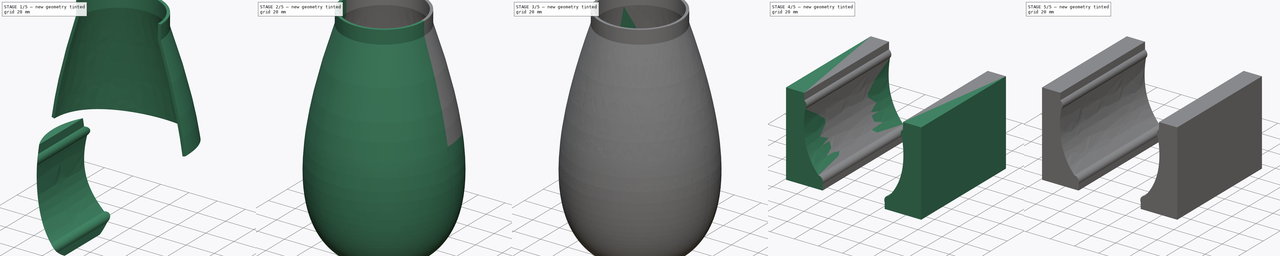
[diagram: build sequence overview — one tinted view per stage of 5, left to right]
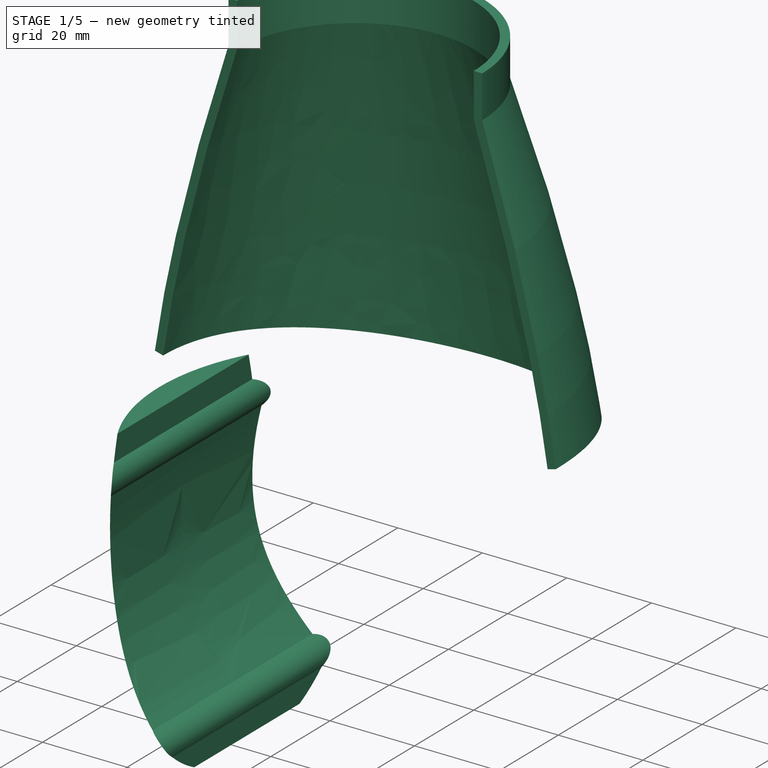
[diagram: stage 1 of 5 — iso view after this stage's code; geometry added in this stage tinted green]
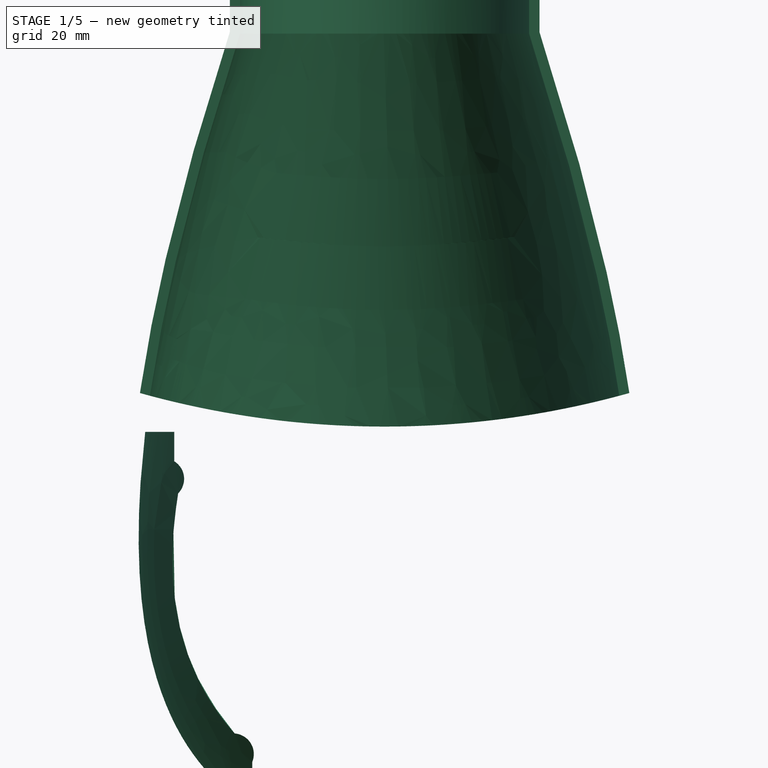
[diagram: stage 1 of 5 — front view after this stage's code; geometry added in this stage tinted green]
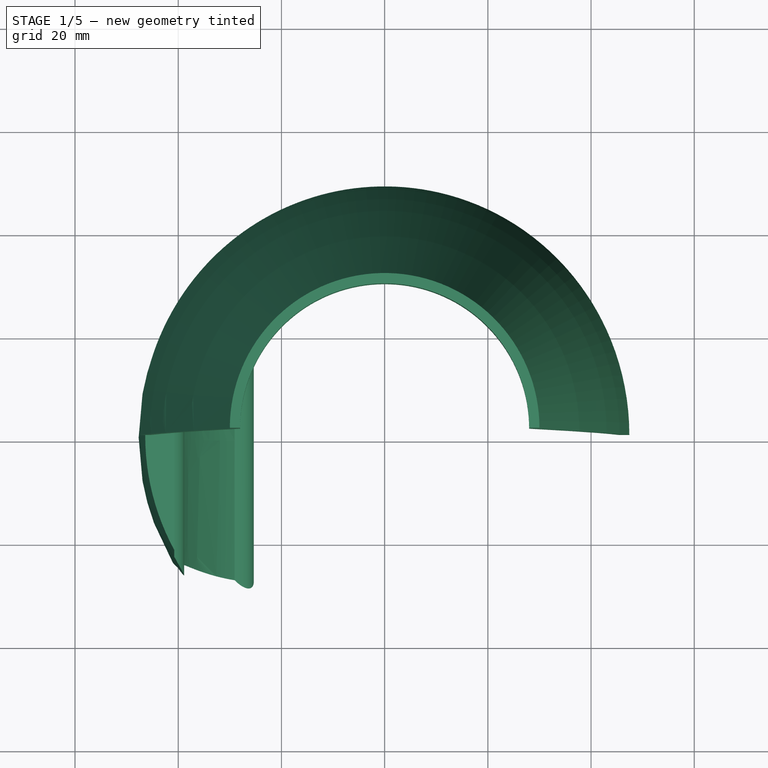
[diagram: stage 1 of 5 — top view after this stage's code; geometry added in this stage tinted green]
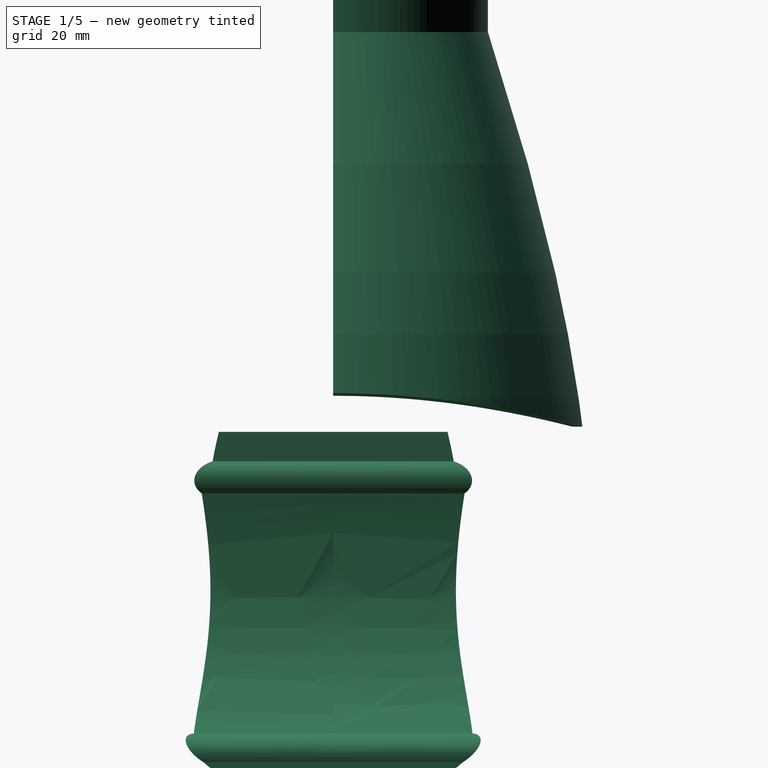
[diagram: stage 1 of 5 — right view after this stage's code; geometry added in this stage tinted green]
FCSTD DOCUMENT  (FreeCAD 2021.0308R24301 +3361 (Git))
Label: splitTools
License: All rights reserved
LicenseURL: http://en.wikipedia.org/wiki/All_rights_reserved
objects: PartDesign::Solid×12, PartDesign::SubShapeBinder×8, PartDesign::Body×7, Sketcher::SketchObject×4, PartDesign::Split×4, App::DocumentObjectGroup×3, PartDesign::Pad×2, Part::Extrusion×2, PartDesign::Revolution×1, PartDesign::Thickness×1, App::Part×1, PartDesign::Plane×1
note: 54 computed .brp shape members not serialized (recipe doc carries the construction recipe); baked Part::Feature solids carry a one-line shape summary decoded from their .brp

FEATURE [PartDesign::Solid] Split001_i3
  Active = false
  Parent = -> Split001
FEATURE [PartDesign::Split] Split003
  BaseFeature = -> Split002
  Fragment = false
  Mode = 0
  NewSolid = false
  Solids = -> [Split003_i0,Split003_i1]
  Suppress = false
  Tolerance = 0
  Tools = -> [DatumPlane]
FEATURE [PartDesign::Solid] Split003_i0
  Active = true
  Parent = -> Split003
FEATURE [PartDesign::Solid] Split003_i1
  Active = false
  Parent = -> Split003
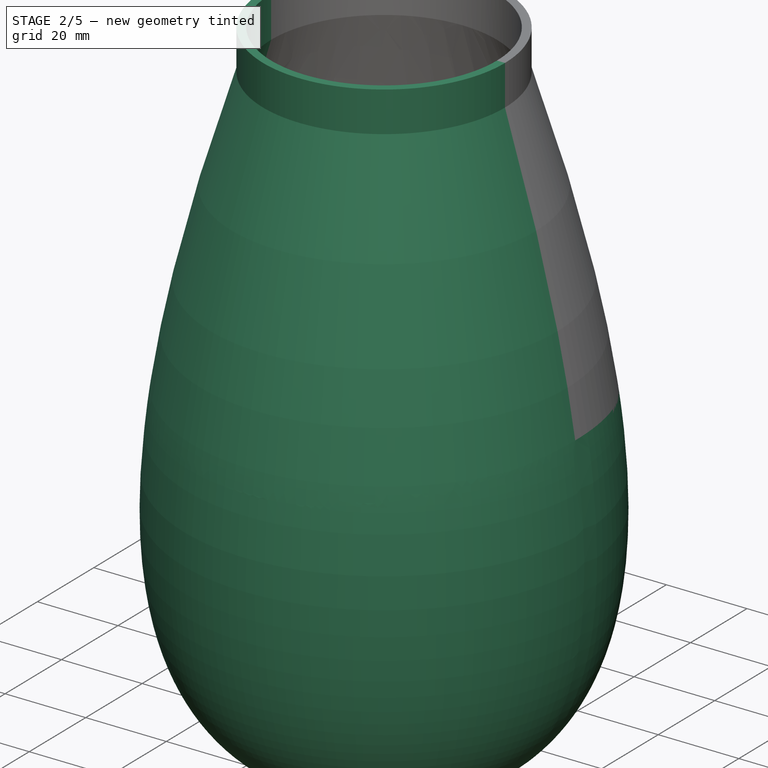
[diagram: stage 2 of 5 — iso view after this stage's code; geometry added in this stage tinted green]
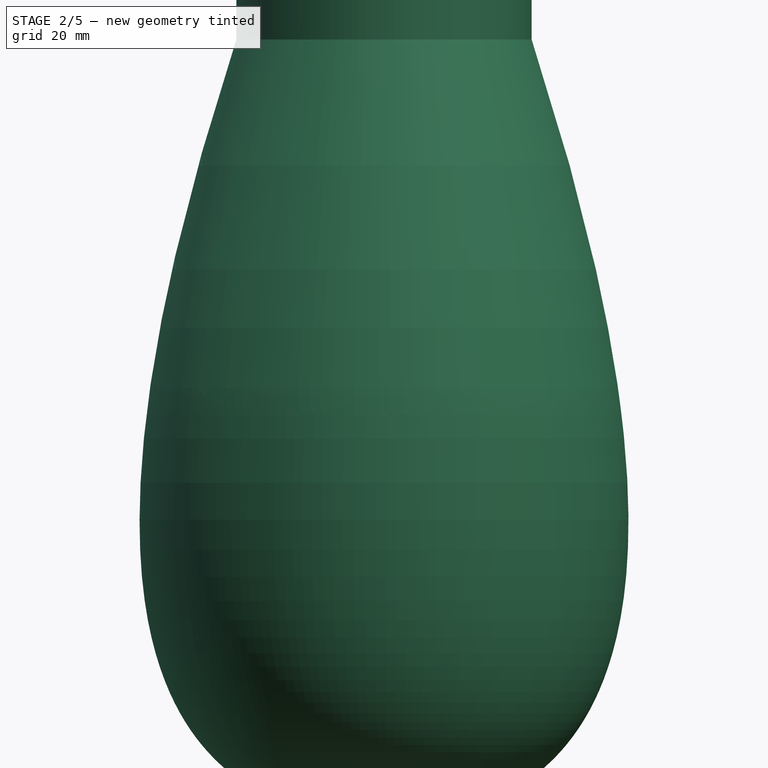
[diagram: stage 2 of 5 — front view after this stage's code; geometry added in this stage tinted green]
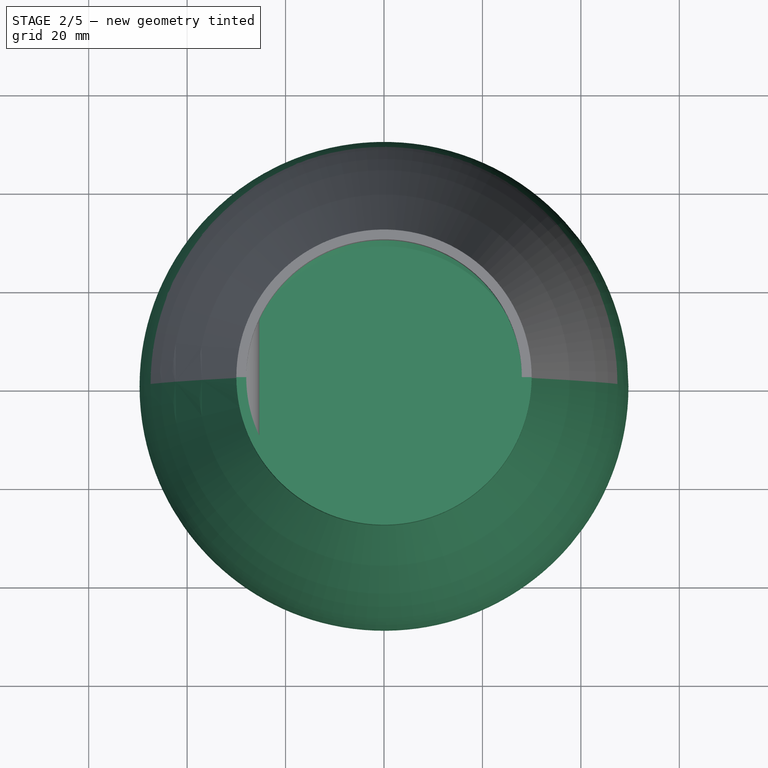
[diagram: stage 2 of 5 — top view after this stage's code; geometry added in this stage tinted green]
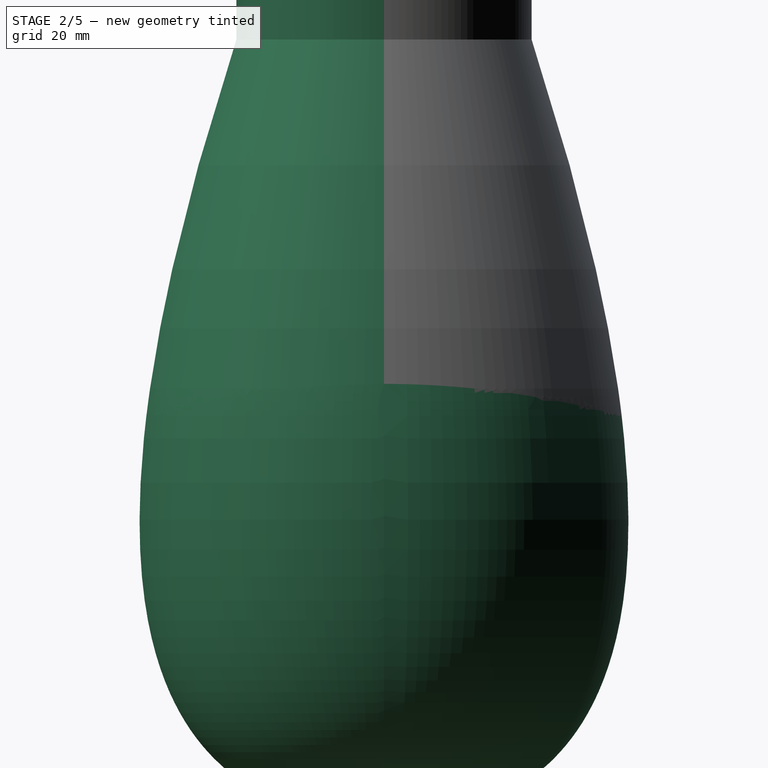
[diagram: stage 2 of 5 — right view after this stage's code; geometry added in this stage tinted green]
FEATURE [PartDesign::Split] Split001
  BaseFeature = -> Split
  Fragment = false
  Mode = 0
  NewSolid = false
  Solids = -> [Split001_i0,Split001_i1,Split001_i2,Split001_i3]
  Suppress = false
  Tolerance = 0
  Tools = -> [Binder002]
FEATURE [PartDesign::Solid] Split001_i0
  Active = true
  Parent = -> Split001
FEATURE [PartDesign::Solid] Split001_i1
  Active = true
  Parent = -> Split001
FEATURE [App::DocumentObjectGroup] Group002  label="Components"
  ExportMode = 1
  Group = -> [Body,Body006]
  _GroupVersion = 1
FEATURE [PartDesign::Solid] Split001_i2
  Active = false
  Parent = -> Split001
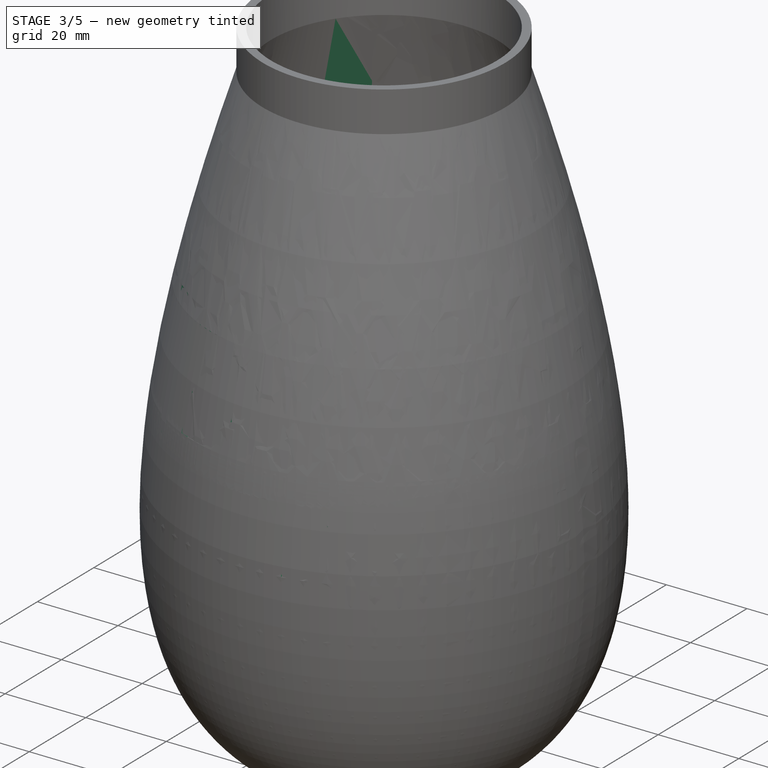
[diagram: stage 3 of 5 — iso view after this stage's code; geometry added in this stage tinted green]
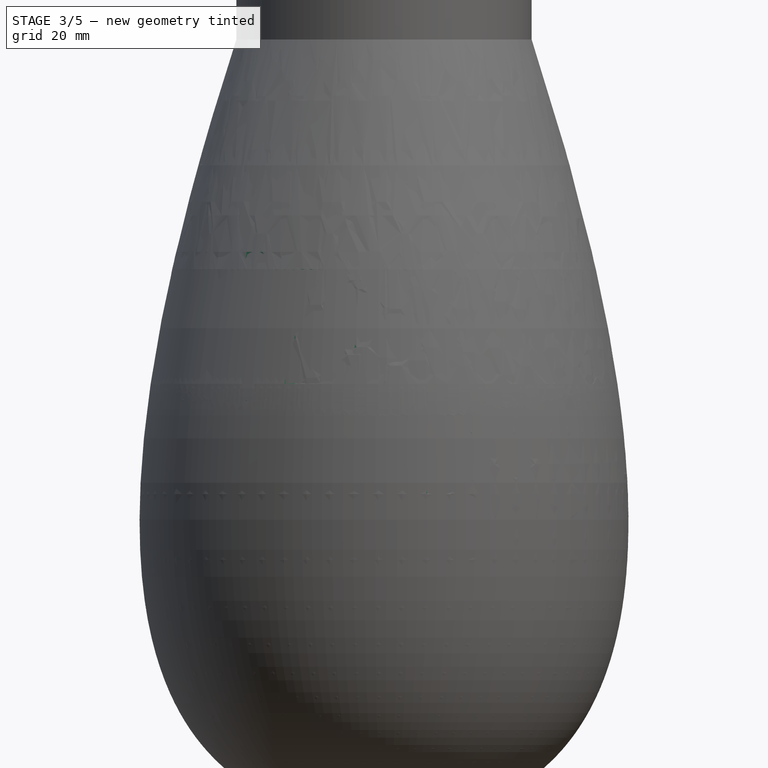
[diagram: stage 3 of 5 — front view after this stage's code; geometry added in this stage tinted green]
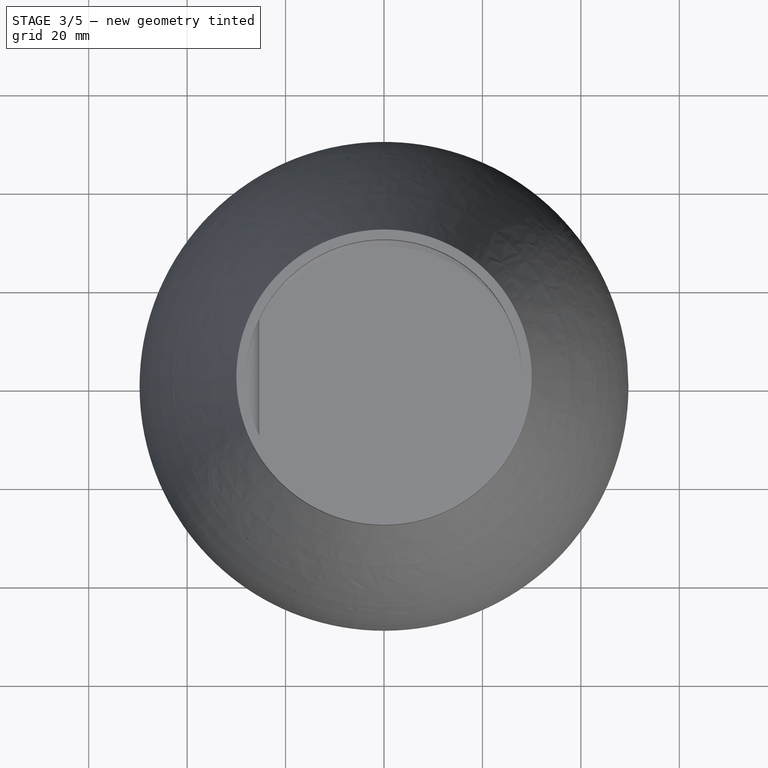
[diagram: stage 3 of 5 — top view after this stage's code; geometry added in this stage tinted green]
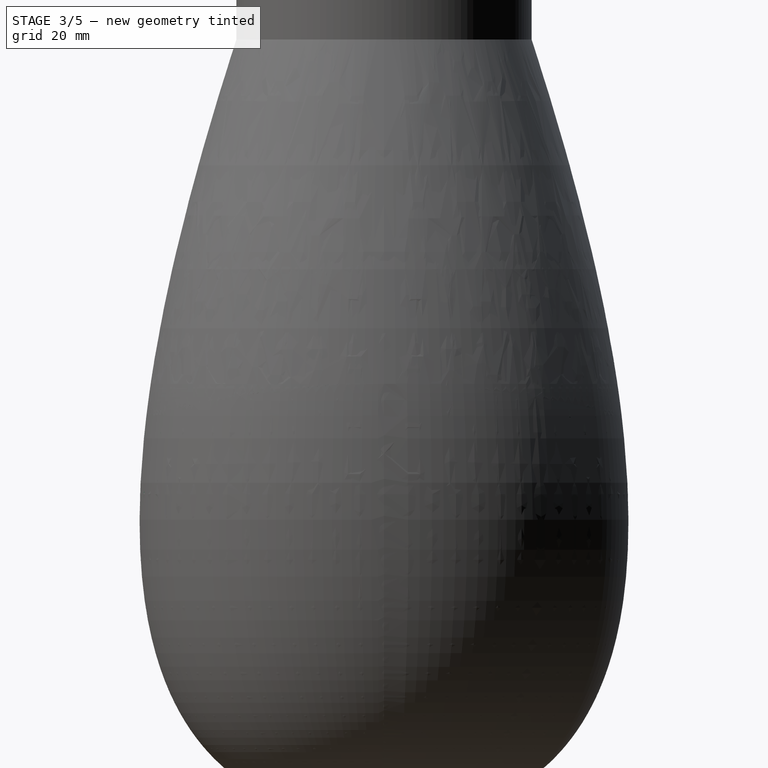
[diagram: stage 3 of 5 — right view after this stage's code; geometry added in this stage tinted green]
FEATURE [Sketcher::SketchObject] Sketch
  FullyConstrained = false
  MapMode = 5
  Placement = pos=(0,0,0) rot=(1,0,0;1.5708rad)
  Support = -> [XZ_Plane]
  sketch-geometry (9):
    g0: LineSegment StartX=30 StartY=150 StartZ=0 EndX=0 EndY=150 EndZ=0
    g1: LineSegment StartX=0 StartY=150 StartZ=0 EndX=0 EndY=0 EndZ=0
    g2: LineSegment StartX=0 StartY=0 StartZ=0 EndX=30 EndY=0 EndZ=0
    g3: Circle [constr] CenterX=30 CenterY=150 CenterZ=0 NormalX=0 NormalY=0 NormalZ=1 AngleXU=0 Radius=1
    g4: Circle [constr] CenterX=69.3439 CenterY=29.0557 CenterZ=0 NormalX=0 NormalY=0 NormalZ=1 AngleXU=0 Radius=1
    g5: Circle [constr] CenterX=30 CenterY=0 CenterZ=0 NormalX=0 NormalY=0 NormalZ=1 AngleXU=0 Radius=1
    g6: BSplineCurve PolesCount=3 KnotsCount=2 Degree=2 IsPeriodic=0
    g7: GeomPoint [constr] X=30 Y=150 Z=0
    g8: GeomPoint [constr] X=30 Y=0 Z=0
  constraints (19):
    c: PointOnObject(g0,g-2)
    c: Horizontal(g0)
    c: Coincident(g0,g1)
    c: Coincident(g1,g-1)
    c: Coincident(g1,g2)
    c: PointOnObject(g2,g-1)
    c: DistanceY(g1,g1) = 150
    c: Equal(g2,g0)
    c: DistanceX(g0,g0) = 30
    c: Coincident(g6,g0)
    c: Weight(g3) = 1
    c: Equal(g3,g4)
    c: Equal(g3,g5)
    c: Coincident(g6,g2)
    c: InternalAlignment(g3,g6)
    c: InternalAlignment(g4,g6)
    c: InternalAlignment(g5,g6)
    c: InternalAlignment(g7,g6)
    c: InternalAlignment(g8,g6)
FEATURE [PartDesign::Revolution] Revolution
  Angle = 360
  Axis = (0,2e-16,1)
  Base = (0,0,0)
  ClaimChildren = false
  Fit = 0
  FitJoin = 0
  InnerFit = 0
  InnerFitJoin = 0
  NewSolid = false
  Placement = pos=(0,0,0) rot=(1,0,0;1.5708rad)
  Profile = -> Sketch
  ReferenceAxis = -> Sketch [V_Axis]
  Reversed = true
  Suppress = false
FEATURE [PartDesign::Pad] Pad
  BaseFeature = -> Revolution
  ClaimChildren = false
  Direction = (1,1,1)
  Fit = 0
  FitJoin = 0
  InnerFit = 0
  InnerFitJoin = 0
  InnerTaperAngle = 0
  InnerTaperAngleRev = 0
  Length = 10
  Length2 = 100
  NewSolid = false
  Placement = pos=(0,0,0) rot=(1,0,0;1.5708rad)
  Profile = -> Revolution [Face1]
  Suppress = false
  Type = 0
  UsePipeForDraft = true
FEATURE [PartDesign::Thickness] Thickness
  Base = -> Pad [Face4]
  BaseFeature = -> Pad
  Intersection = false
  Join = 1
  Mode = 0
  NewSolid = false
  Reversed = true
  SupportTransform = false
  Suppress = false
  Value = 2
FEATURE [PartDesign::Solid] Split_i1
  Active = true
  Parent = -> Split
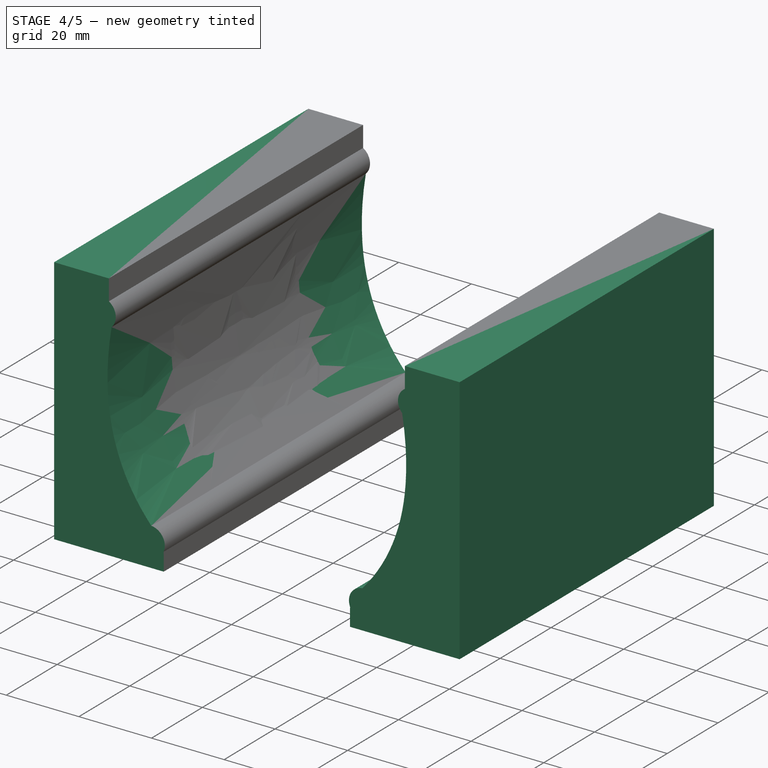
[diagram: stage 4 of 5 — iso view after this stage's code; geometry added in this stage tinted green]
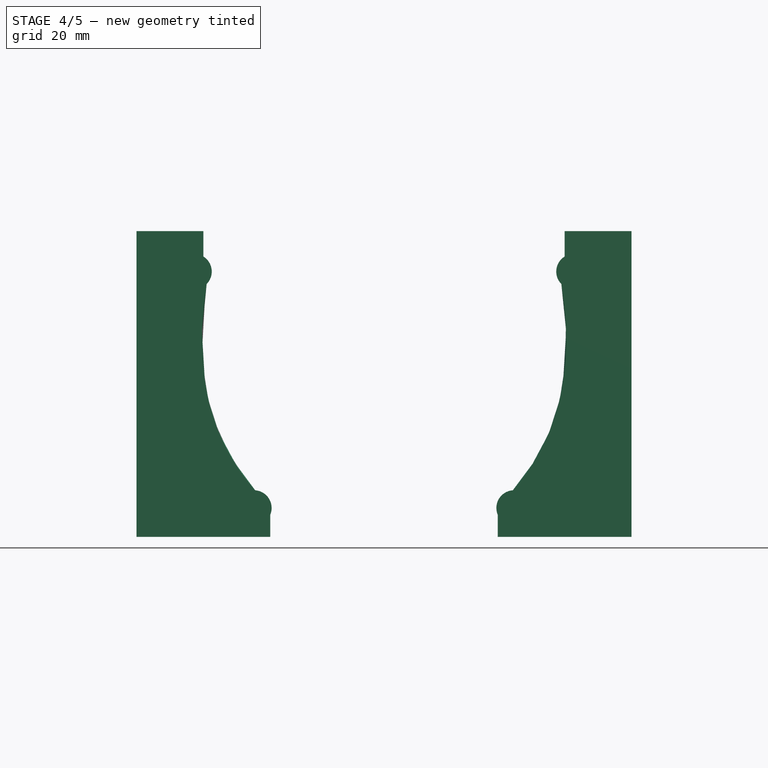
[diagram: stage 4 of 5 — front view after this stage's code; geometry added in this stage tinted green]
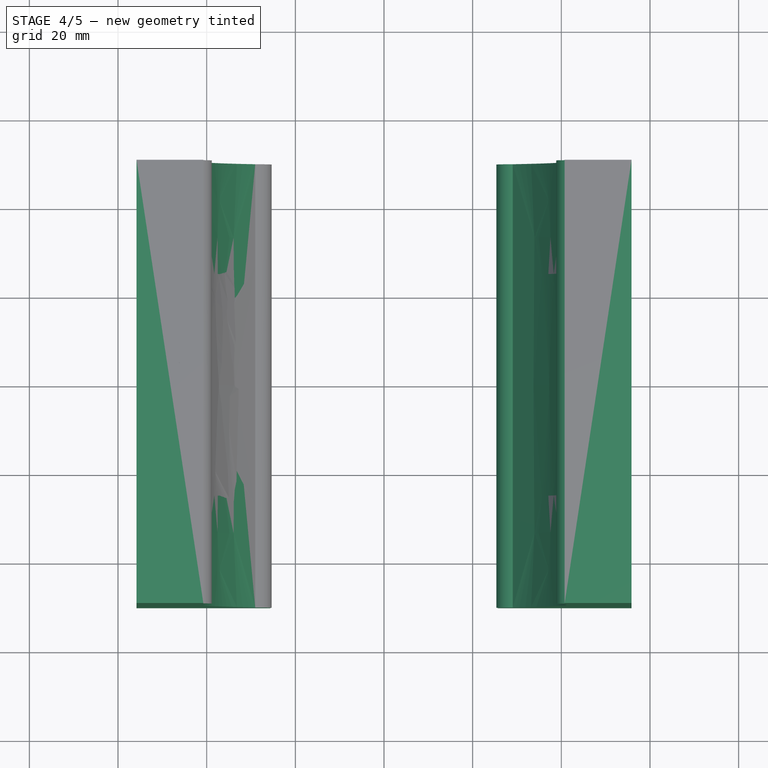
[diagram: stage 4 of 5 — top view after this stage's code; geometry added in this stage tinted green]
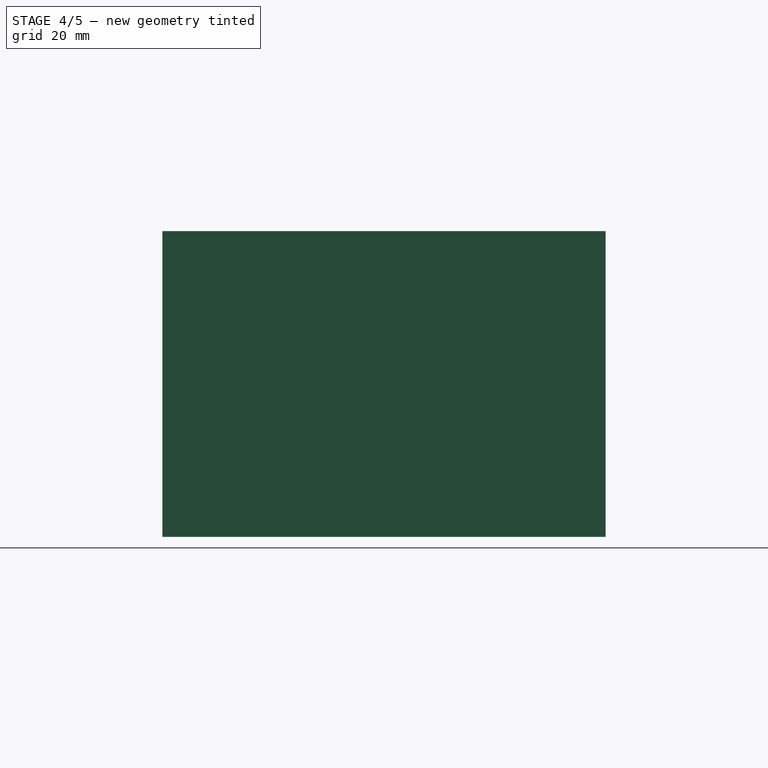
[diagram: stage 4 of 5 — right view after this stage's code; geometry added in this stage tinted green]
FEATURE [PartDesign::SubShapeBinder] Binder  label="Binder(Thickness)"
  BindCopyOnChange = 0
  BindMode = 0
  ClaimChildren = false
  Context = -> Body001 [Binder.]
  FillStyle = 0
  Fuse = false
  MakeFace = true
  PartialLoad = false
  Relative = true
  Support = -> [Thickness[Face7]]
  _Version = 7
FEATURE [Sketcher::SketchObject] Sketch001
  ExternalGeometry = -> [Binder]
  FullyConstrained = false
  MapMode = 5
  Placement = pos=(0,0,0) rot=(0.57735,0.57735,0.57735;2.0944rad)
  Support = -> [YZ_Plane001]
  sketch-geometry (2):
    g0: LineSegment StartX=1.1e-15 StartY=2 StartZ=0 EndX=0 EndY=250.134 EndZ=0
    g1: LineSegment StartX=1.1e-15 StartY=2 StartZ=0 EndX=-98.7085 EndY=2 EndZ=0
  constraints (4):
    c: PointOnObject(g0,g-2)
    c: Coincident(g1,g0)
    c: PointOnObject(g1,g-3)
    c: PointOnObject(g0,g-3)
FEATURE [Sketcher::SketchObject] Sketch002
  FullyConstrained = false
  MapMode = 5
  Placement = pos=(0,0,0) rot=(1,0,0;1.5708rad)
  Support = -> [XZ_Plane001]
  sketch-geometry (1):
    g0: ArcOfCircle CenterX=1.8e-14 CenterY=249.704 CenterZ=0 NormalX=0 NormalY=0 NormalZ=1 AngleXU=0 Radius=176.178 StartAngle=4.12164 EndAngle=5.30314
  constraints (1):
    c: Symmetric(g0,g0,g-2)
FEATURE [PartDesign::Body] Body001  label="SplittingTools"
  AutoGroupSolids = false
  ExportMode = 0
  Group = -> [Sketch001,Binder,Sketch002]
  Origin = -> Origin001
  _ExportChildren = -> [Sketch001,Binder,Sketch002]
  _GroupVersion = 1
FEATURE [Part::Extrusion] Extrude
  Base = -> Sketch001
  Dir = (-1,0,0)
  DirMode = 0
  FaceMakerClass = Part::FaceMakerBullseye
  InnerTaperAngle = 0
  InnerTaperAngleRev = 0
  LengthFwd = 200
  LengthRev = 0
  Solid = false
  Symmetric = true
  UsePipeForDraft = true
FEATURE [Part::Extrusion] Extrude001
  Base = -> Sketch002
  Dir = (0,-1,0)
  DirMode = 0
  FaceMakerClass = Part::FaceMakerBullseye
  InnerTaperAngle = 0
  InnerTaperAngleRev = 0
  LengthFwd = 200
  LengthRev = 0
  Solid = false
  Symmetric = true
  UsePipeForDraft = true
FEATURE [App::DocumentObjectGroup] Group  label="SplittingTools001"
  ExportMode = 1
  Group = -> [Body001,Extrude,Extrude001]
  _GroupVersion = 1
FEATURE [App::DocumentObjectGroup] Group001  label="AssemblyTools"
  ExportMode = 1
  _GroupVersion = 1
FEATURE [PartDesign::SubShapeBinder] Binder001  label="Binder001(Extrude001)"
  BindCopyOnChange = 0
  BindMode = 0
  ClaimChildren = false
  Context = -> Body [Binder001.]
  FillStyle = 0
  Fuse = false
  MakeFace = true
  PartialLoad = false
  Relative = true
  Support = -> [Extrude001[Face1]]
  _Version = 7
FEATURE [PartDesign::SubShapeBinder] Binder002  label="Binder002(Extrude)..."
  BindCopyOnChange = 0
  BindMode = 0
  ClaimChildren = false
  Context = -> Body [Binder002.]
  FillStyle = 0
  Fuse = false
  MakeFace = true
  PartialLoad = false
  Relative = true
  Support = -> [Extrude[Face2,Face1]]
  _Version = 7
FEATURE [PartDesign::SubShapeBinder] BaseFeature  label="BaseFeature(Split001_i0)"
  BindCopyOnChange = 0
  BindMode = 0
  ClaimChildren = false
  Context = -> Part [Body002.BaseFeature.]
  FillStyle = 0
  Fuse = true
  MakeFace = true
  PartialLoad = false
  Relative = true
  Support = -> [Body[Split001_i0.]]
  _Version = 7
FEATURE [PartDesign::Body] Body002  label="Bottom"
  AutoGroupSolids = false
  BaseFeature = -> BaseFeature
  ExportMode = 0
  Group = -> [BaseFeature]
  Origin = -> Origin003
  _ExportChildren = -> [BaseFeature]
  _GroupVersion = 1
FEATURE [PartDesign::SubShapeBinder] BaseFeature001  label="BaseFeature001(Split001_i1)"
  BindCopyOnChange = 0
  BindMode = 0
  ClaimChildren = false
  Context = -> Part [Body003.BaseFeature001.]
  FillStyle = 0
  Fuse = true
  MakeFace = true
  PartialLoad = false
  Relative = true
  Support = -> [Body[Split001_i1.]]
  _Version = 7
FEATURE [PartDesign::Body] Body003  label="BottomSide"
  AutoGroupSolids = false
  BaseFeature = -> BaseFeature001
  ExportMode = 0
  Group = -> [BaseFeature001]
  Origin = -> Origin004
  _ExportChildren = -> [BaseFeature001]
  _GroupVersion = 1
FEATURE [PartDesign::SubShapeBinder] BaseFeature002  label="BaseFeature002(Split001_i2)"
  BindCopyOnChange = 0
  BindMode = 0
  ClaimChildren = false
  Context = -> Part [Body004.BaseFeature002.]
  FillStyle = 0
  Fuse = true
  MakeFace = true
  PartialLoad = false
  Relative = true
  Support = -> [Body[Split001_i2.]]
  _Version = 7
FEATURE [PartDesign::Body] Body004
  AutoGroupSolids = false
  BaseFeature = -> BaseFeature002
  ExportMode = 0
  Group = -> [BaseFeature002]
  Origin = -> Origin005
  _ExportChildren = -> [BaseFeature002]
  _GroupVersion = 1
FEATURE [PartDesign::SubShapeBinder] BaseFeature003  label="BaseFeature003(Split001_i3)"
  BindCopyOnChange = 0
  BindMode = 0
  ClaimChildren = false
  Context = -> Part [Body005.BaseFeature003.]
  FillStyle = 0
  Fuse = true
  MakeFace = true
  PartialLoad = false
  Relative = true
  Support = -> [Body[Split001_i3.]]
  _Version = 7
FEATURE [PartDesign::Body] Body005
  AutoGroupSolids = false
  BaseFeature = -> BaseFeature003
  ExportMode = 0
  Group = -> [BaseFeature003]
  Origin = -> Origin006
  _ExportChildren = -> [BaseFeature003]
  _GroupVersion = 1
FEATURE [App::Part] Part  label="FinalProduct"
  ExportMode = 1
  Group = -> [Body002,Body003,Body004,Body005]
  Origin = -> Origin002
  _ExportChildren = -> [Body002,Body003,Body004,Body005]
  _GroupVersion = 1
FEATURE [PartDesign::SubShapeBinder] Binder003  label="Binder003(*Split001_i1)..."
  BindCopyOnChange = 0
  BindMode = 0
  ClaimChildren = false
  Context = -> Part [Body006.Binder003.]
  FillStyle = 0
  Fuse = false
  MakeFace = true
  PartialLoad = false
  Relative = true
  Support = -> [Body003[BaseFeature001.Face6],Body002[BaseFeature.Face6,BaseFeature.Face7]]
  _Version = 7
FEATURE [Sketcher::SketchObject] Sketch003
  ExternalGeometry = -> [Binder003]
  FullyConstrained = false
  MapMode = 5
  Placement = pos=(0,0,0) rot=(1,0,0;1.5708rad)
  Support = -> [XZ_Plane006]
  sketch-geometry (26):
    g0: ArcOfCircle CenterX=-42.8603 CenterY=63.3901 CenterZ=0 NormalX=0 NormalY=0 NormalZ=1 AngleXU=0 Radius=4 StartAngle=5.50412 EndAngle=7.30155
    g1: ArcOfCircle CenterX=-29.3539 CenterY=10.0638 CenterZ=0 NormalX=0 NormalY=0 NormalZ=1 AngleXU=0 Radius=4 StartAngle=5.88637 EndAngle=7.77962
    g2: LineSegment StartX=-40.7612 StartY=66.7951 StartZ=0 EndX=-40.7612 EndY=72.5062 EndZ=0
    g3: LineSegment StartX=-40.7612 StartY=72.5062 StartZ=0 EndX=-55.839 EndY=72.5062 EndZ=0
    g4: LineSegment StartX=-55.839 StartY=72.5062 StartZ=0 EndX=-55.839 EndY=3.55179 EndZ=0
    g5: LineSegment StartX=-55.839 StartY=3.55179 StartZ=0 EndX=-25.6535 EndY=3.55179 EndZ=0
    g6: Circle [constr] CenterX=-40.014 CenterY=60.5797 CenterZ=0 NormalX=0 NormalY=0 NormalZ=1 AngleXU=0 Radius=1
    g7: Circle [constr] CenterX=-44.7852 CenterY=31.8128 CenterZ=0 NormalX=0 NormalY=0 NormalZ=1 AngleXU=0 Radius=1
    g8: Circle [constr] CenterX=-29.0567 CenterY=14.0527 CenterZ=0 NormalX=0 NormalY=0 NormalZ=1 AngleXU=0 Radius=1
    g9: BSplineCurve PolesCount=3 KnotsCount=2 Degree=2 IsPeriodic=0
    g10: GeomPoint [constr] X=-40.014 Y=60.5797 Z=0
    g11: GeomPoint [constr] X=-29.0567 Y=14.0527 Z=0
    g12: LineSegment StartX=-25.6535 StartY=3.55179 StartZ=0 EndX=-25.6647 EndY=8.51787 EndZ=0
    g13: ArcOfCircle CenterX=42.8603 CenterY=63.3901 CenterZ=0 NormalX=0 NormalY=0 NormalZ=1 AngleXU=0 Radius=4 StartAngle=2.12322 EndAngle=3.92065
    g14: ArcOfCircle CenterX=29.3539 CenterY=10.0638 CenterZ=0 NormalX=0 NormalY=0 NormalZ=1 AngleXU=0 Radius=4 StartAngle=1.64516 EndAngle=3.53841
    g15: LineSegment StartX=40.7612 StartY=66.7951 StartZ=0 EndX=40.7612 EndY=72.5062 EndZ=0
    g16: LineSegment StartX=40.7612 StartY=72.5062 StartZ=0 EndX=55.839 EndY=72.5062 EndZ=0
    g17: LineSegment StartX=55.839 StartY=72.5062 StartZ=0 EndX=55.839 EndY=3.55179 EndZ=0
    g18: LineSegment StartX=55.839 StartY=3.55179 StartZ=0 EndX=25.6535 EndY=3.55179 EndZ=0
    g19: Circle [constr] CenterX=40.014 CenterY=60.5797 CenterZ=0 NormalX=0 NormalY=0 NormalZ=1 AngleXU=0 Radius=1
    g20: Circle [constr] CenterX=44.7852 CenterY=31.8128 CenterZ=0 NormalX=0 NormalY=0 NormalZ=1 AngleXU=0 Radius=1
    g21: Circle [constr] CenterX=29.0567 CenterY=14.0527 CenterZ=0 NormalX=0 NormalY=0 NormalZ=1 AngleXU=0 Radius=1
    g22: BSplineCurve PolesCount=3 KnotsCount=2 Degree=2 IsPeriodic=0
    g23: GeomPoint [constr] X=40.014 Y=60.5797 Z=0
    g24: GeomPoint [constr] X=29.0567 Y=14.0527 Z=0
    g25: LineSegment StartX=25.6535 StartY=3.55179 StartZ=0 EndX=25.6647 EndY=8.51787 EndZ=0
  constraints (44):
    c: Equal(g0,g1)
    c: Radius(g0) = 4
    c: Coincident(g2,g0)
    c: Vertical(g2)
    c: Coincident(g3,g2)
    c: Horizontal(g3)
    c: Coincident(g4,g3)
    c: Vertical(g4)
    c: Coincident(g5,g4)
    c: Horizontal(g5)
    c: Coincident(g9,g0)
    c: Weight(g6) = 1
    c: Equal(g6,g7)
    c: Equal(g6,g8)
    c: Coincident(g9,g1)
    c: InternalAlignment(g6,g9)
    c: InternalAlignment(g7,g9)
    c: InternalAlignment(g8,g9)
    c: InternalAlignment(g10,g9)
    c: InternalAlignment(g11,g9)
    c: Coincident(g12,g5)
    c: Coincident(g12,g1)
    c: Equal(g13,g14)
    c: Radius(g13) = 4
    c: Coincident(g15,g13)
    c: Vertical(g15)
    c: Coincident(g16,g15)
    c: Horizontal(g16)
    c: Coincident(g17,g16)
    c: Vertical(g17)
    c: Coincident(g18,g17)
    c: Horizontal(g18)
    c: Coincident(g22,g13)
    c: Weight(g19) = 1
    c: Equal(g19,g20)
    c: Equal(g19,g21)
    c: Coincident(g22,g14)
    c: InternalAlignment(g19,g22)
    c: InternalAlignment(g20,g22)
    c: InternalAlignment(g21,g22)
    c: InternalAlignment(g23,g22)
    c: InternalAlignment(g24,g22)
    c: Coincident(g25,g18)
    c: Coincident(g25,g14)
FEATURE [PartDesign::Pad] Pad001
  ClaimChildren = false
  Direction = (1,1,1)
  Fit = 0
  FitJoin = 0
  InnerFit = 0
  InnerFitJoin = 0
  InnerTaperAngle = 0
  InnerTaperAngleRev = 0
  Length = 100
  Length2 = 100
  Midplane = true
  NewSolid = false
  Placement = pos=(0,0,0) rot=(1,0,0;1.5708rad)
  Profile = -> Sketch003
  Suppress = false
  Type = 0
  UsePipeForDraft = true
FEATURE [PartDesign::Plane] DatumPlane
  Length = 111.678
  MapMode = 2
  MinimumLength = 10
  MinimumWidth = 10
  Placement = pos=(0,0,0) rot=(1,0,0;1.5708rad)
  ResizeMode = 0
  Support = -> [Pad001]
  Width = 79.496
FEATURE [PartDesign::Body] Body  label="Vase"
  AutoGroupSolids = false
  ExportMode = 0
  Group = -> [Sketch,Revolution,Pad,Thickness,Binder001,Split,Split_i0,Split_i1,Binder002,Split001,Split001_i0,Split001_i1,Split001_i2,Split001_i3]
  Origin = -> Origin
  Tip = -> Split001
  _ExportChildren = -> [Revolution,Pad,Thickness,Split,Split001]
  _GroupVersion = 1
FEATURE [PartDesign::Split] Split
  BaseFeature = -> Thickness
  Fragment = false
  Mode = 0
  NewSolid = false
  Solids = -> [Split_i0,Split_i1]
  Suppress = false
  Tolerance = 0
  Tools = -> [Binder001]
FEATURE [PartDesign::Solid] Split_i0
  Active = true
  Parent = -> Split
FEATURE [PartDesign::Solid] Split002_i3
  Active = false
  Parent = -> Split002
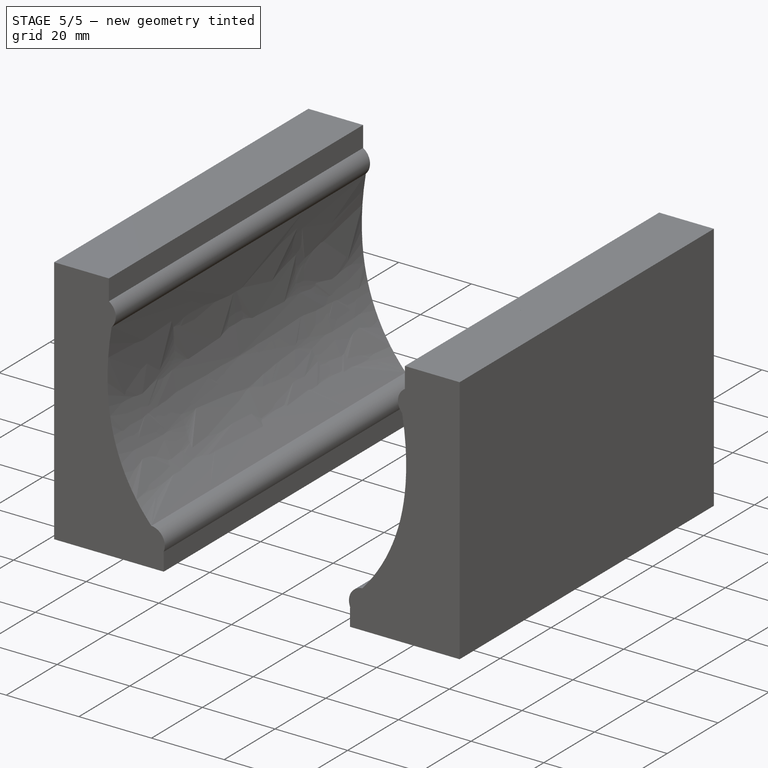
[diagram: stage 5 of 5 — iso view after this stage's code; geometry added in this stage tinted green]
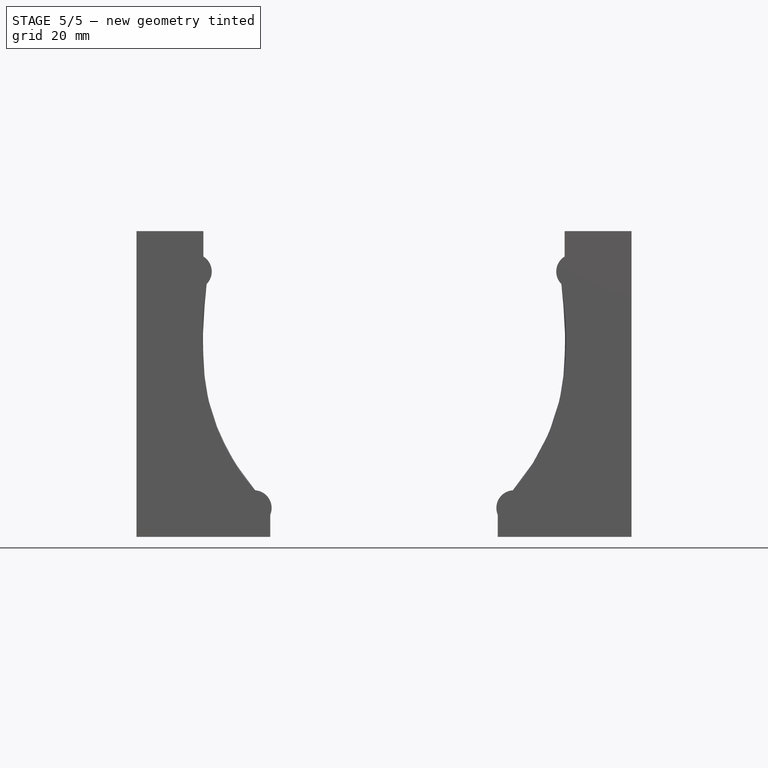
[diagram: stage 5 of 5 — front view after this stage's code; geometry added in this stage tinted green]
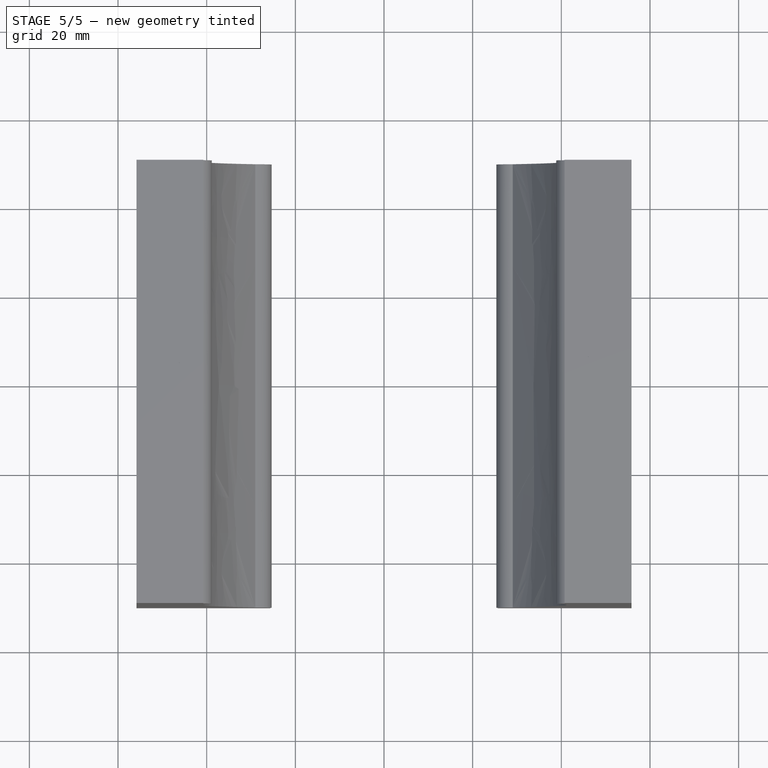
[diagram: stage 5 of 5 — top view after this stage's code; geometry added in this stage tinted green]
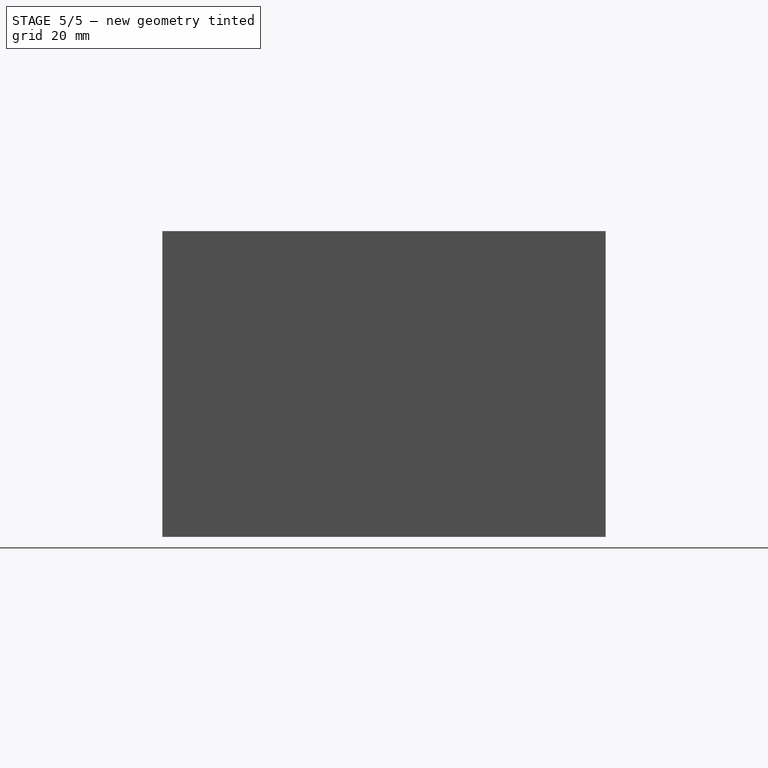
[diagram: stage 5 of 5 — right view after this stage's code; geometry added in this stage tinted green]
FEATURE [PartDesign::Body] Body006  label="BaseConnection"
  AutoGroupSolids = false
  ExportMode = 0
  Group = -> [Binder003,Sketch003,Pad001,Split002,Split002_i0,Split002_i1,Split002_i2,Split002_i3,DatumPlane,Split003,Split003_i0,Split003_i1]
  Origin = -> Origin007
  Tip = -> Split003
  _ExportChildren = -> [Pad001,Split002,Split003]
  _GroupVersion = 1
FEATURE [PartDesign::Split] Split002
  BaseFeature = -> Pad001
  Fragment = false
  Mode = 0
  NewSolid = false
  Solids = -> [Split002_i0,Split002_i1,Split002_i2,Split002_i3]
  Suppress = false
  Tolerance = 0
  Tools = -> [Binder003]
FEATURE [PartDesign::Solid] Split002_i0
  Active = true
  Parent = -> Split002
FEATURE [PartDesign::Solid] Split002_i1
  Active = true
  Parent = -> Split002
FEATURE [PartDesign::Solid] Split002_i2
  Active = false
  Parent = -> Split002
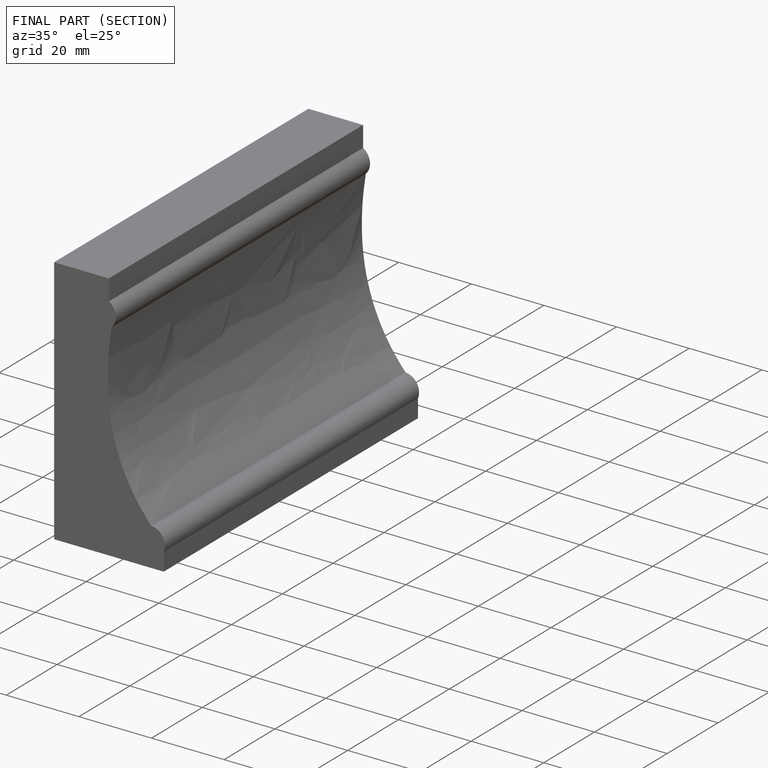
[diagram: finished part — half-section view (interior)]
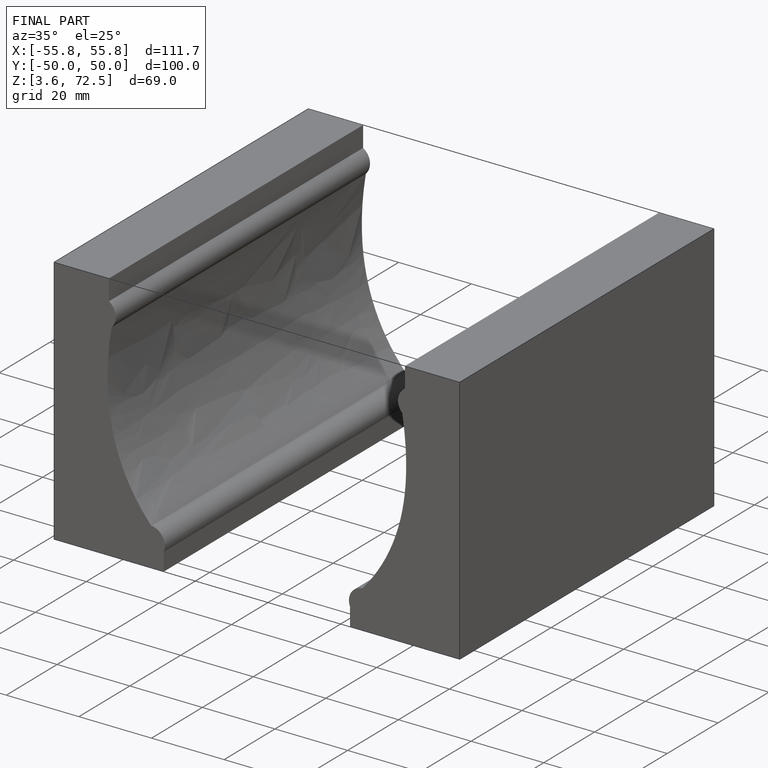
[diagram: finished part — iso view with bounding-box wireframe]
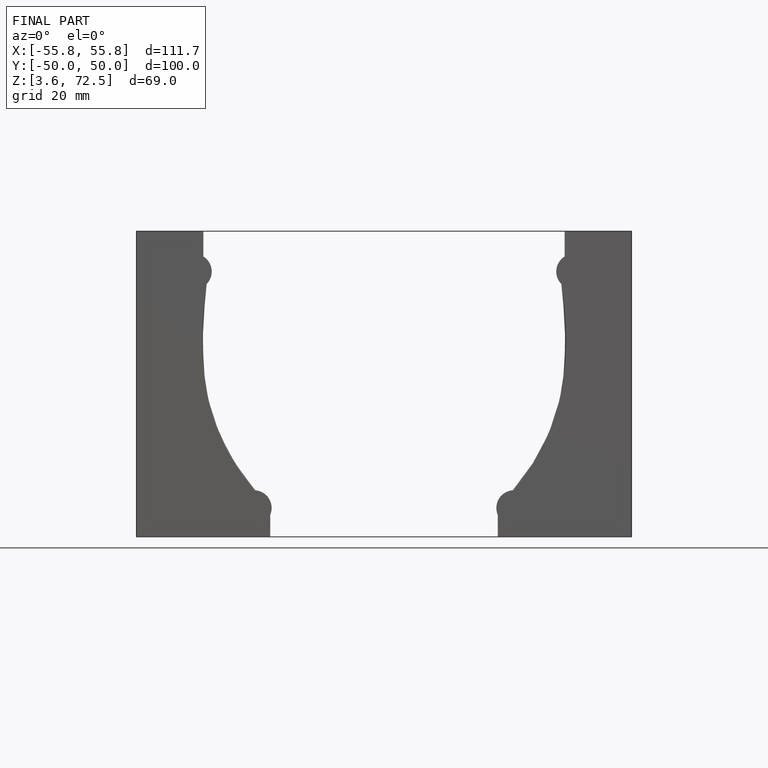
[diagram: finished part — front view with bounding-box wireframe]
